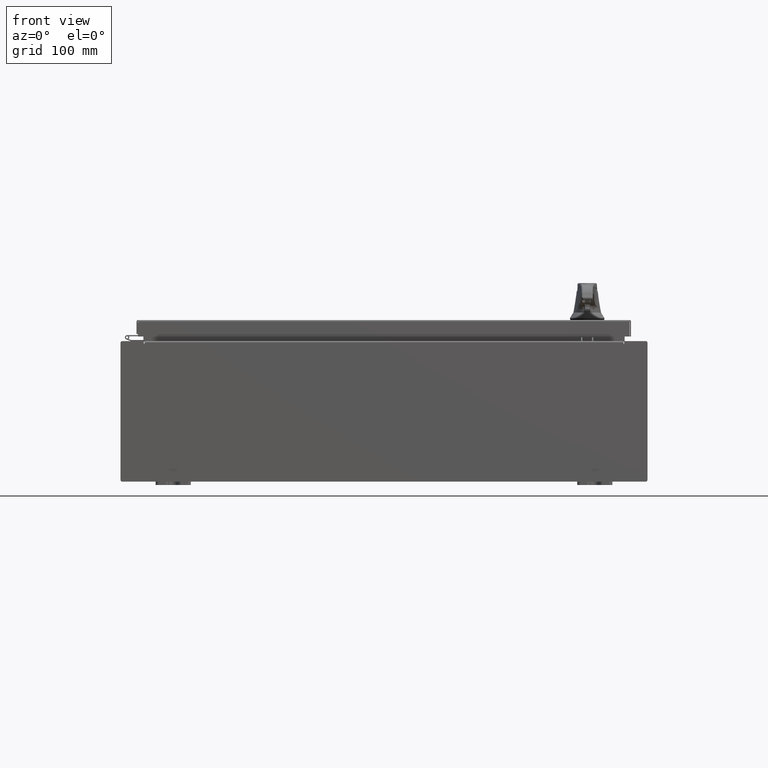
[diagram: clean part render]
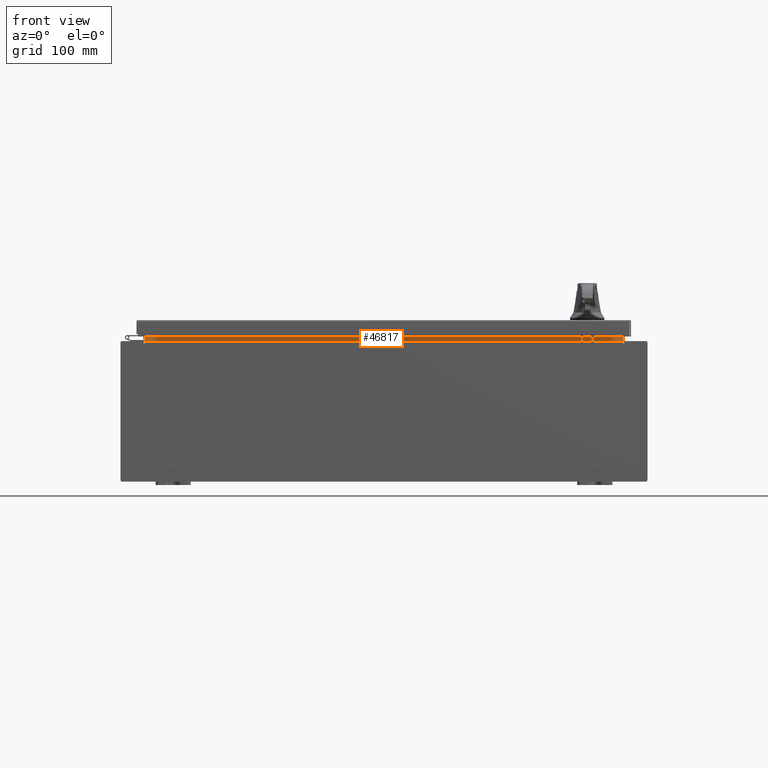
[diagram: same view with one face highlighted and labeled with its STEP entity id]
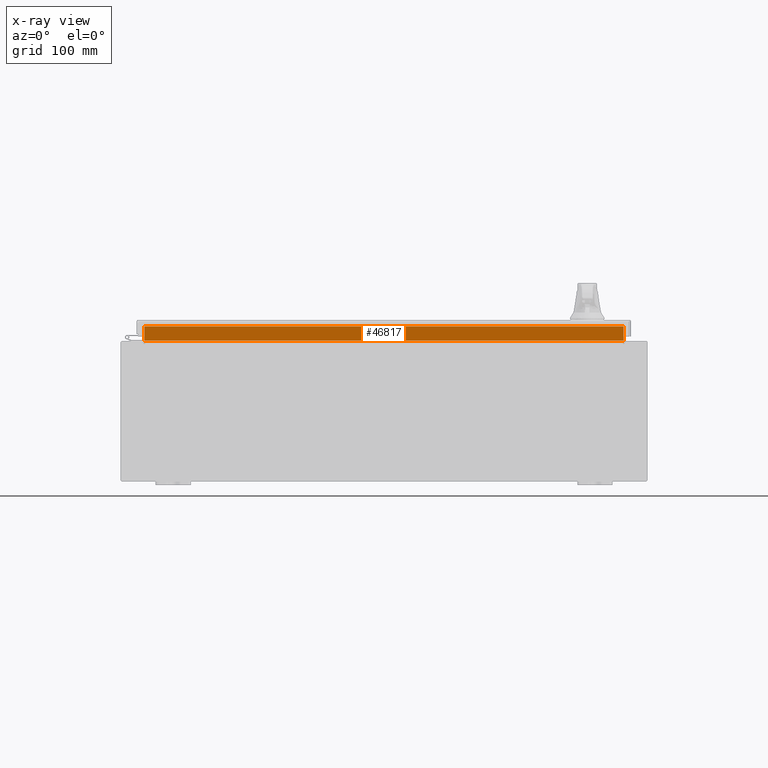
[diagram: x-ray of the same camera — body ghosted, the highlighted face saturated]
A machine part, front view. The second image highlights one B-rep face of the part: STEP entity #46817.
The next image is the same camera in x-ray: the body ghosted, the highlighted face saturated — about 0% of this face is hidden behind the body in this view.
In plain terms, the highlighted planar face has unit normal (0, -1, 0).
Its self-contained STEP definition (entity closure, byte-faithful):
#1540 = VERTEX_POINT ( 'NONE', #50027 ) ;
#1709 = CARTESIAN_POINT ( 'NONE',  ( 13.63720000000000400, -1.300299999999999300, 4.837600000000003700 ) ) ;
#7180 = CARTESIAN_POINT ( 'NONE',  ( -13.63719999999999800, -1.300299999999999800, 4.013000000000003500 ) ) ;
#9208 = VECTOR ( 'NONE', #106880, 39.37007874015748100 ) ;
#11826 = CARTESIAN_POINT ( 'NONE',  ( -13.63719999999999800, -1.300299999999999800, 4.000000000000004400 ) ) ;
#12634 = DIRECTION ( 'NONE',  ( 1.000000000000000000, 0.0000000000000000000, -2.003232330437526000E-017 ) ) ;
#12861 = EDGE_CURVE ( 'NONE', #57509, #1540, #90946, .T. ) ;
#13834 = ORIENTED_EDGE ( 'NONE', *, *, #16217, .F. ) ;
#16217 = EDGE_CURVE ( 'NONE', #26938, #21861, #60728, .T. ) ;
#21861 = VERTEX_POINT ( 'NONE', #97784 ) ;
#26938 = VERTEX_POINT ( 'NONE', #57096 ) ;
#27791 = DIRECTION ( 'NONE',  ( -1.000000000000000000, -0.0000000000000000000, -0.0000000000000000000 ) ) ;
#40085 = DIRECTION ( 'NONE',  ( 0.0000000000000000000, -0.0000000000000000000, 1.000000000000000000 ) ) ;
#40170 = CARTESIAN_POINT ( 'NONE',  ( 13.63720000000000400, -1.300299999999999800, 4.925300000000004500 ) ) ;
#43486 = EDGE_LOOP ( 'NONE', ( #105085, #13834, #48445, #47043 ) ) ;
#46817 = ADVANCED_FACE ( 'NONE', ( #48854 ), #74573, .T. ) ;
#47043 = ORIENTED_EDGE ( 'NONE', *, *, #12861, .F. ) ;
#48445 = ORIENTED_EDGE ( 'NONE', *, *, #62659, .F. ) ;
#48854 = FACE_OUTER_BOUND ( 'NONE', #43486, .T. ) ;
#50027 = CARTESIAN_POINT ( 'NONE',  ( 13.63720000000000000, -1.300299999999999800, 4.013000000000003500 ) ) ;
#52571 = VECTOR ( 'NONE', #27791, 39.37007874015748100 ) ;
#57096 = CARTESIAN_POINT ( 'NONE',  ( 13.63720000000000400, -1.300299999999999800, 4.837600000000003700 ) ) ;
#57509 = VERTEX_POINT ( 'NONE', #7180 ) ;
#60728 = LINE ( 'NONE', #1709, #52571 ) ;
#62659 = EDGE_CURVE ( 'NONE', #1540, #26938, #87516, .T. ) ;
#72539 = CARTESIAN_POINT ( 'NONE',  ( -13.63719999999999800, -1.300299999999999800, 4.013000000000003500 ) ) ;
#74573 = PLANE ( 'NONE',  #101214 ) ;
#78327 = LINE ( 'NONE', #11826, #9208 ) ;
#83262 = CARTESIAN_POINT ( 'NONE',  ( 0.0000000000000000000, -1.300299999999999800, 0.0000000000000000000 ) ) ;
#86579 = EDGE_CURVE ( 'NONE', #21861, #57509, #78327, .T. ) ;
#87516 = LINE ( 'NONE', #40170, #107766 ) ;
#88266 = VECTOR ( 'NONE', #12634, 39.37007874015748100 ) ;
#90946 = LINE ( 'NONE', #72539, #88266 ) ;
#91970 = DIRECTION ( 'NONE',  ( 0.0000000000000000000, 1.000000000000000000, 0.0000000000000000000 ) ) ;
#97784 = CARTESIAN_POINT ( 'NONE',  ( -13.63719999999999800, -1.300299999999999300, 4.837600000000003700 ) ) ;
#100711 = DIRECTION ( 'NONE',  ( -0.0000000000000000000, -0.0000000000000000000, 1.000000000000000000 ) ) ;
#101214 = AXIS2_PLACEMENT_3D ( 'NONE', #83262, #91970, #40085 ) ;
#105085 = ORIENTED_EDGE ( 'NONE', *, *, #86579, .F. ) ;
#106880 = DIRECTION ( 'NONE',  ( -0.0000000000000000000, -0.0000000000000000000, -1.000000000000000000 ) ) ;
#107766 = VECTOR ( 'NONE', #100711, 39.37007874015748100 ) ;